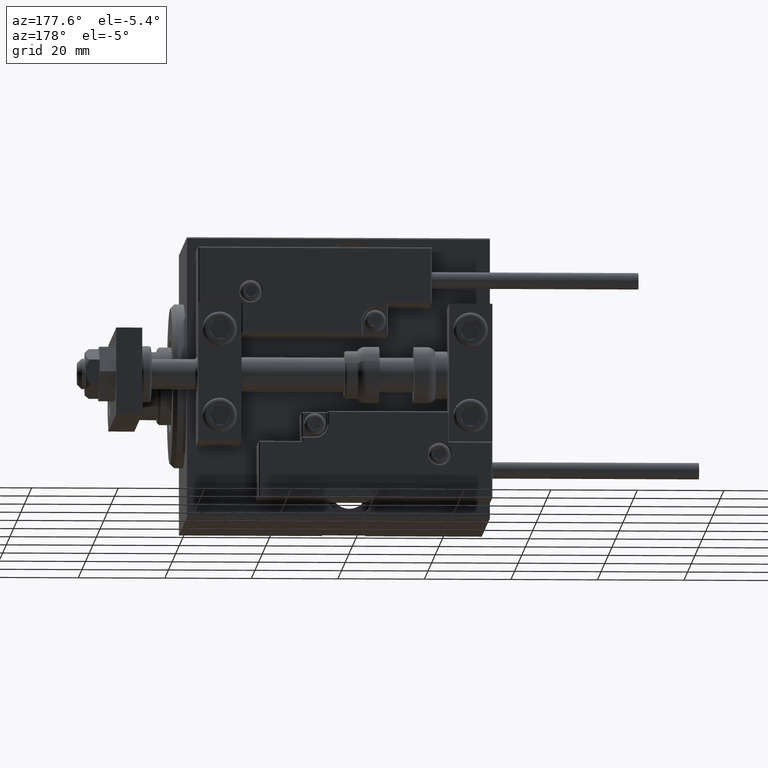
[diagram: clean part render]
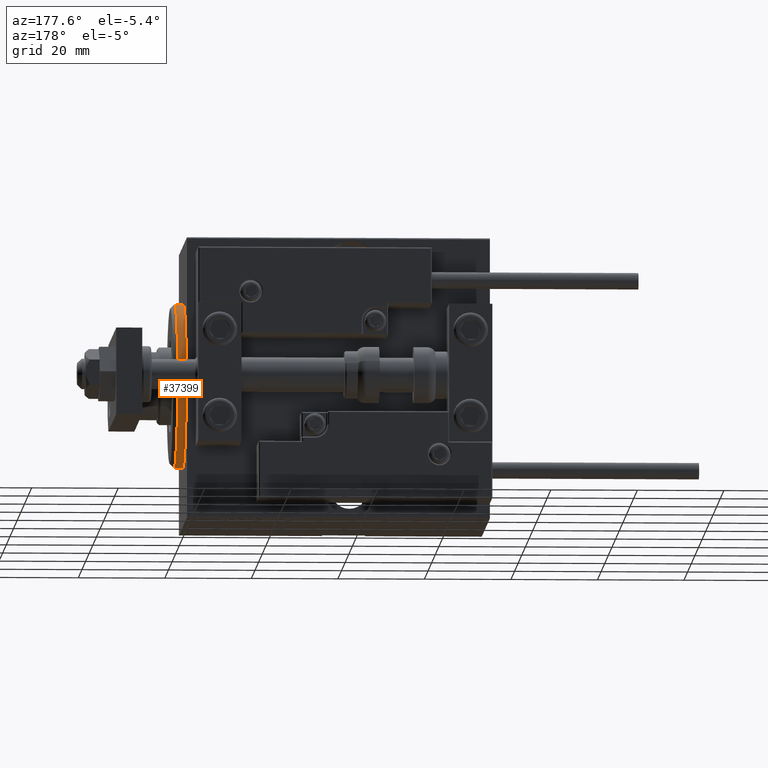
[diagram: same view with one face highlighted and labeled with its STEP entity id]
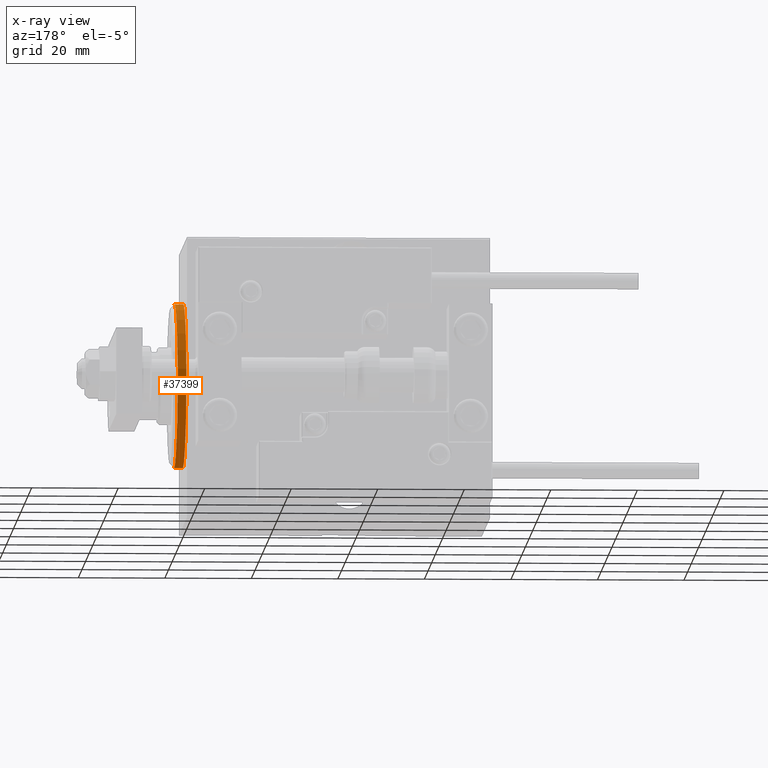
[diagram: x-ray of the same camera — body ghosted, the highlighted face saturated]
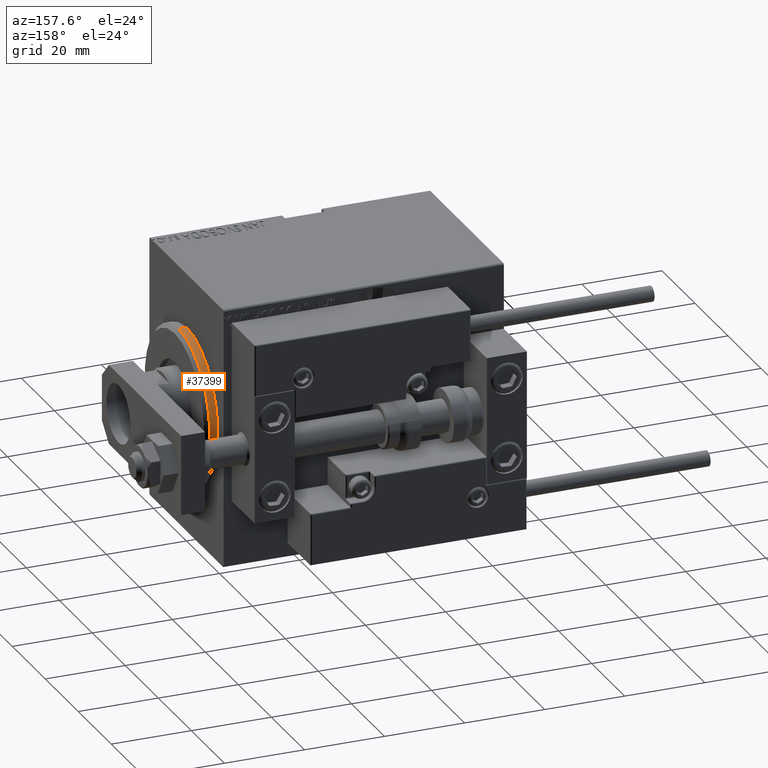
[diagram: same view with one face highlighted and labeled with its STEP entity id]
A machine part, auxiliary view. The second image highlights one B-rep face of the part: STEP entity #37399.
The next image is the same camera in x-ray: the body ghosted, the highlighted face saturated — about 0% of this face is hidden behind the body in this view.
A second angle (auxiliary view) of the same face is appended — the face is thin or edge-on in the first view.
In plain terms, the highlighted cylindrical surface (partial cylindrical patch) has radius 19 mm, axis along (-1, -0, -0).
Its self-contained STEP definition (entity closure, byte-faithful):
#986 = AXIS2_PLACEMENT_3D ( 'NONE', #32564, #9772, #32827 ) ;
#1598 = CARTESIAN_POINT ( 'NONE',  ( 0.000000000000000000, 0.000000000000000000, 0.000000000000000000 ) ) ;
#2263 = DIRECTION ( 'NONE',  ( -1.000000000000000000, -0.000000000000000000, -0.000000000000000000 ) ) ;
#5097 = AXIS2_PLACEMENT_3D ( 'NONE', #49524, #34481, #41253 ) ;
#7461 = VECTOR ( 'NONE', #2263, 1000.000000000000000 ) ;
#8145 = ORIENTED_EDGE ( 'NONE', *, *, #44063, .T. ) ;
#9418 = ORIENTED_EDGE ( 'NONE', *, *, #12367, .F. ) ;
#9772 = DIRECTION ( 'NONE',  ( -1.000000000000000000, -0.000000000000000000, -0.000000000000000000 ) ) ;
#12073 = CARTESIAN_POINT ( 'NONE',  ( 3.000000000000000000, 0.000000000000000000, 19.00000000000000000 ) ) ;
#12367 = EDGE_CURVE ( 'NONE', #28472, #18065, #31109, .T. ) ;
#13018 = VECTOR ( 'NONE', #16321, 1000.000000000000000 ) ;
#13521 = FACE_OUTER_BOUND ( 'NONE', #40876, .T. ) ;
#13900 = VERTEX_POINT ( 'NONE', #21862 ) ;
#16321 = DIRECTION ( 'NONE',  ( -1.000000000000000000, -0.000000000000000000, -0.000000000000000000 ) ) ;
#17292 = ORIENTED_EDGE ( 'NONE', *, *, #39728, .T. ) ;
#17596 = EDGE_CURVE ( 'NONE', #28472, #13900, #33105, .T. ) ;
#18065 = VERTEX_POINT ( 'NONE', #47914 ) ;
#21566 = CARTESIAN_POINT ( 'NONE',  ( 3.000000000000000000, 2.326828918379970970E-15, -19.00000000000000000 ) ) ;
#21862 = CARTESIAN_POINT ( 'NONE',  ( 1.999999999999992228, 2.326828918379970970E-15, -19.00000000000000000 ) ) ;
#23207 = VERTEX_POINT ( 'NONE', #38606 ) ;
#28472 = VERTEX_POINT ( 'NONE', #33214 ) ;
#31109 = LINE ( 'NONE', #12073, #13018 ) ;
#32564 = CARTESIAN_POINT ( 'NONE',  ( 3.000000000000000000, 0.000000000000000000, 0.000000000000000000 ) ) ;
#32827 = DIRECTION ( 'NONE',  ( 0.000000000000000000, 0.000000000000000000, 1.000000000000000000 ) ) ;
#33105 = CIRCLE ( 'NONE', #5097, 19.00000000000000000 ) ;
#33214 = CARTESIAN_POINT ( 'NONE',  ( 1.999999999999992228, 0.000000000000000000, 19.00000000000000000 ) ) ;
#34481 = DIRECTION ( 'NONE',  ( -1.000000000000000000, 0.000000000000000000, 0.000000000000000000 ) ) ;
#36579 = CYLINDRICAL_SURFACE ( 'NONE', #986, 19.00000000000000000 ) ;
#36598 = LINE ( 'NONE', #21566, #7461 ) ;
#37399 = ADVANCED_FACE ( 'NONE', ( #13521 ), #36579, .T. ) ;
#38606 = CARTESIAN_POINT ( 'NONE',  ( 0.000000000000000000, 2.326828918379970970E-15, -19.00000000000000000 ) ) ;
#38951 = DIRECTION ( 'NONE',  ( 1.000000000000000000, -0.000000000000000000, 0.000000000000000000 ) ) ;
#39194 = DIRECTION ( 'NONE',  ( 0.000000000000000000, 0.000000000000000000, -1.000000000000000000 ) ) ;
#39467 = CIRCLE ( 'NONE', #42669, 19.00000000000000000 ) ;
#39728 = EDGE_CURVE ( 'NONE', #23207, #18065, #39467, .T. ) ;
#40876 = EDGE_LOOP ( 'NONE', ( #44182, #8145, #17292, #9418 ) ) ;
#41253 = DIRECTION ( 'NONE',  ( 0.000000000000000000, 0.000000000000000000, -1.000000000000000000 ) ) ;
#42669 = AXIS2_PLACEMENT_3D ( 'NONE', #1598, #38951, #39194 ) ;
#44063 = EDGE_CURVE ( 'NONE', #13900, #23207, #36598, .T. ) ;
#44182 = ORIENTED_EDGE ( 'NONE', *, *, #17596, .T. ) ;
#47914 = CARTESIAN_POINT ( 'NONE',  ( 0.000000000000000000, 0.000000000000000000, 19.00000000000000000 ) ) ;
#49524 = CARTESIAN_POINT ( 'NONE',  ( 1.999999999999992228, 0.000000000000000000, 0.000000000000000000 ) ) ;